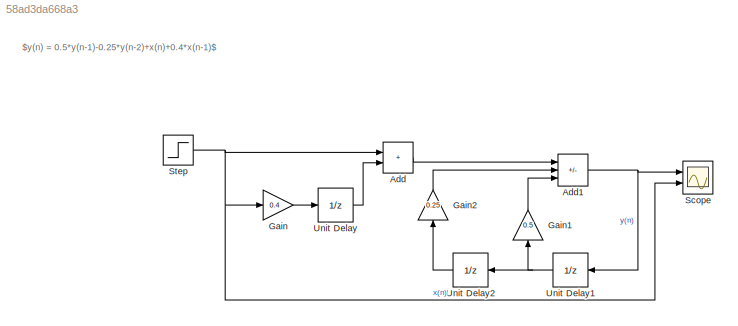
MODEL slx_58ad3da668a3
KIND model
CONFIG AbsTol = auto
CONFIG EnableMultiTasking = off
CONFIG FixedStep = auto
CONFIG MaxStep = auto
CONFIG MinStep = auto
CONFIG RelTol = 1e-3
CONFIG SampleTimeConstraint = Unconstrained
CONFIG Solver = VariableStepAuto
CONFIG SolverName = VariableStepAuto
CONFIG StartTime = 0.0
CONFIG StopTime = 10.0
BLOCK [Sum] Add
  IconShape = rectangular
  Ports = [2, 1]
BLOCK [Sum] Add1
  IconShape = rectangular
  Inputs = +-+
  Ports = [3, 1]
BLOCK [Gain] Gain
  Gain = 0.4
BLOCK [Gain] Gain1
  Gain = 0.5
  NameLocation = right
BLOCK [Gain] Gain2
  Gain = 0.25
  NameLocation = right
BLOCK [Scope] Scope
  Floating = off
  NumInputPorts = 2
  Ports = [2]
  ScopeSpecificationString = Simulink.scopes.TimeScopeBlockCfg('CurrentConfiguration', extmgr.ConfigurationSet(extmgr.Configuration('Core','General UI',true),extmgr.Configuration('Core','Source UI',true),extmgr.Configuration('Sources','WiredSimulink',true),extmgr.Configuration('Visuals','Time Domain',true,'SerializedDisplays',{struct('MinYLimReal','-0.2625','MaxYLimReal','2.3625','YLabelReal','','MinYLimMag','0.00000','MaxYLi...<+1983ch>
BLOCK [Step] Step
  SampleTime = 0
BLOCK [UnitDelay] Unit Delay
  HasFrameUpgradeWarning = on
  SampleTime = -1
BLOCK [UnitDelay] Unit Delay1
  HasFrameUpgradeWarning = on
  NameLocation = top
  SampleTime = -1
BLOCK [UnitDelay] Unit Delay2
  HasFrameUpgradeWarning = on
  NameLocation = top
  SampleTime = -1
ANNOTATION (root): $y(n) = 0.5*y(n-1)-0.25*y(n-2)+x(n)+0.4*x(n-1)$
NET Add1:1 -> Scope:1, Unit Delay1:1
LINE Add:1 -> Add1:1
LINE Gain1:1 -> Add1:3
LINE Gain2:1 -> Add1:2
LINE Gain:1 -> Unit Delay:1
NET Step:1 -> Add:1, Gain:1, Scope:2
NET Unit Delay1:1 -> Gain1:1, Unit Delay2:1
LINE Unit Delay2:1 -> Gain2:1
LINE Unit Delay:1 -> Add:2
note: NET lines group one-source signal fan-out (src -> all destinations, sorted); 1:1 wires keep LINE
